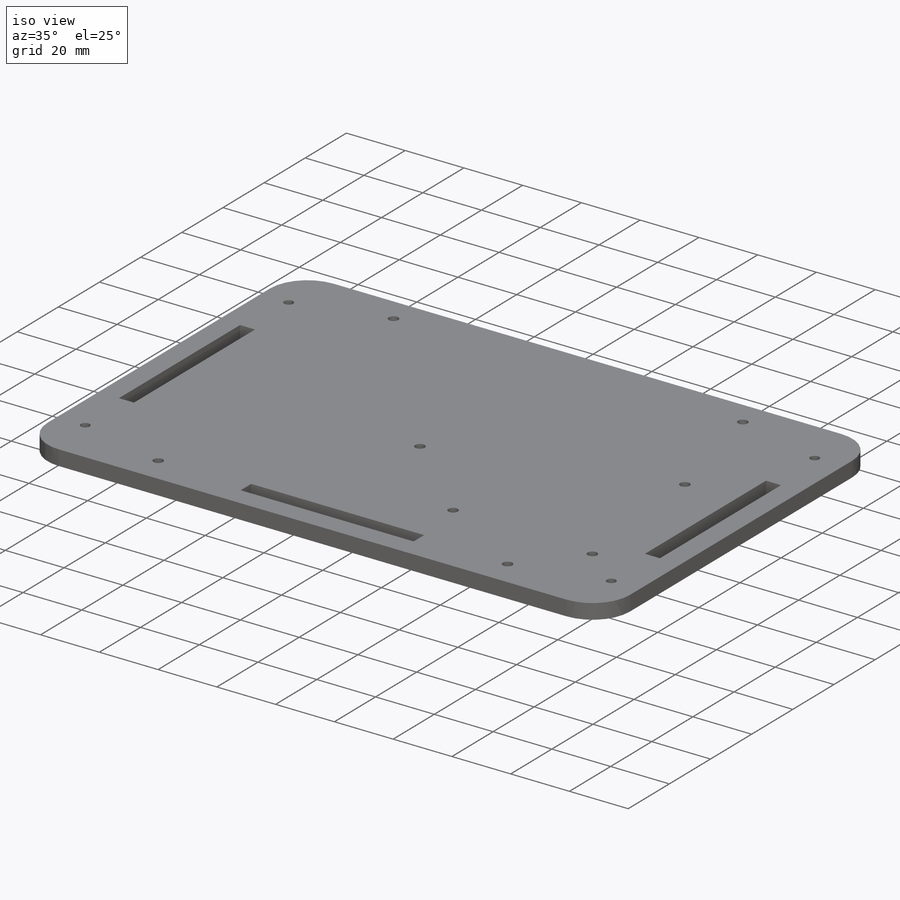
[diagram: iso view]
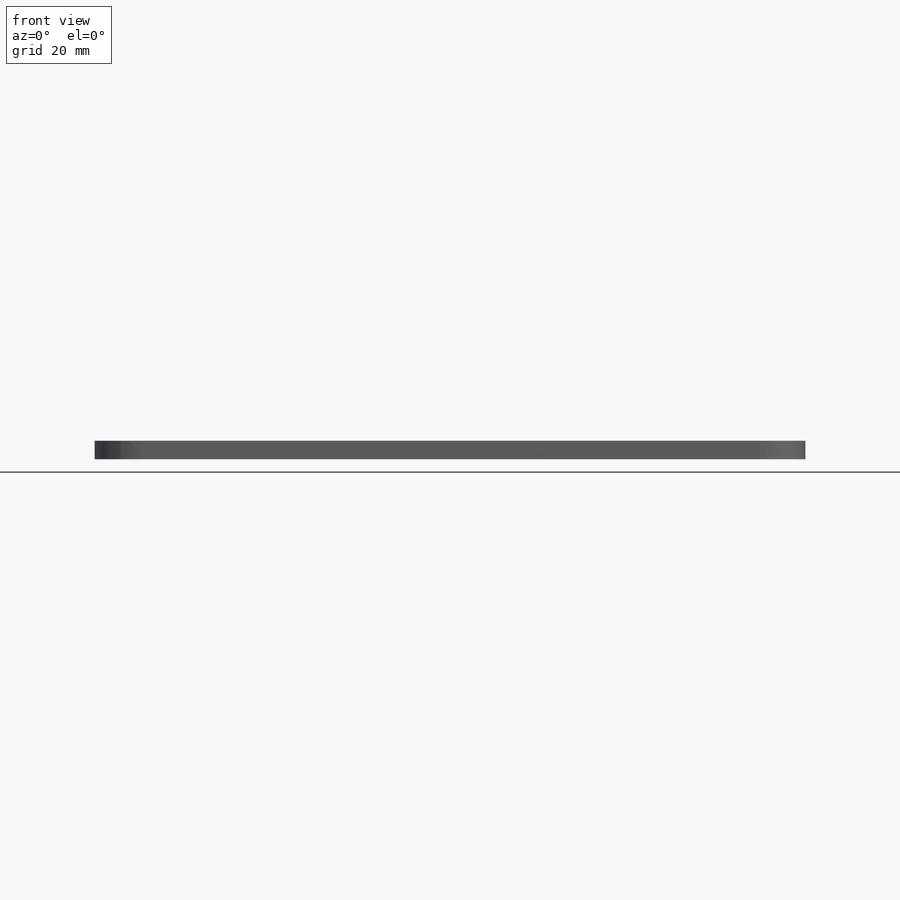
[diagram: front view]
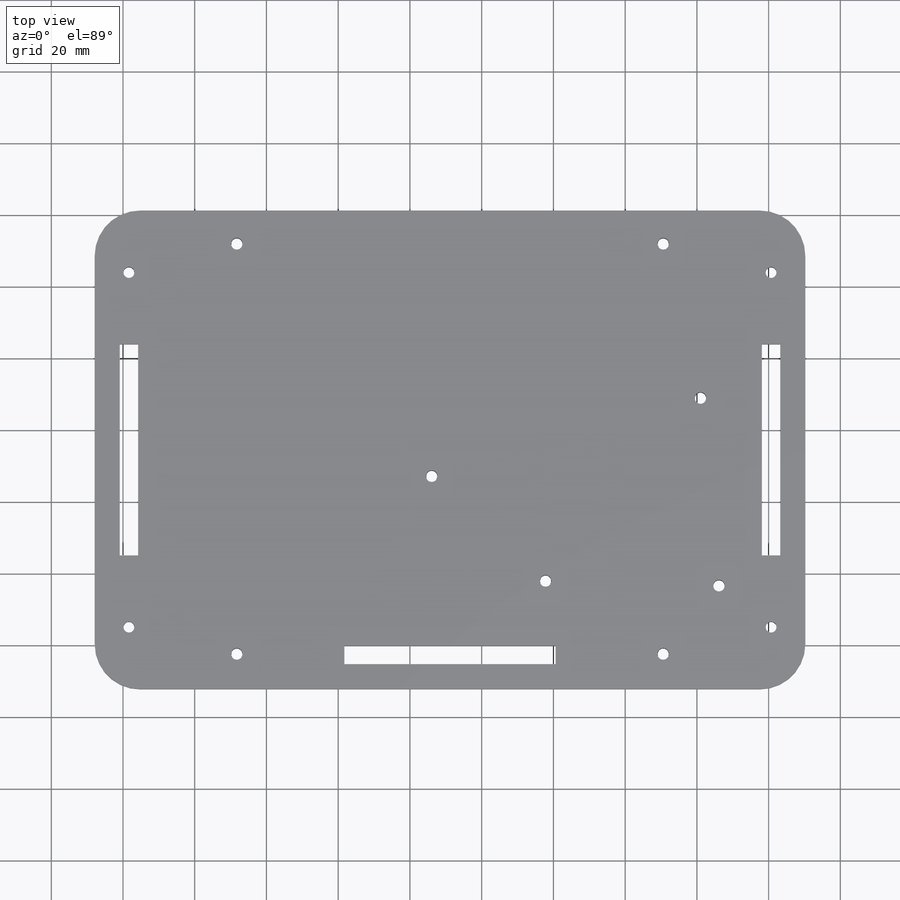
[diagram: top view]
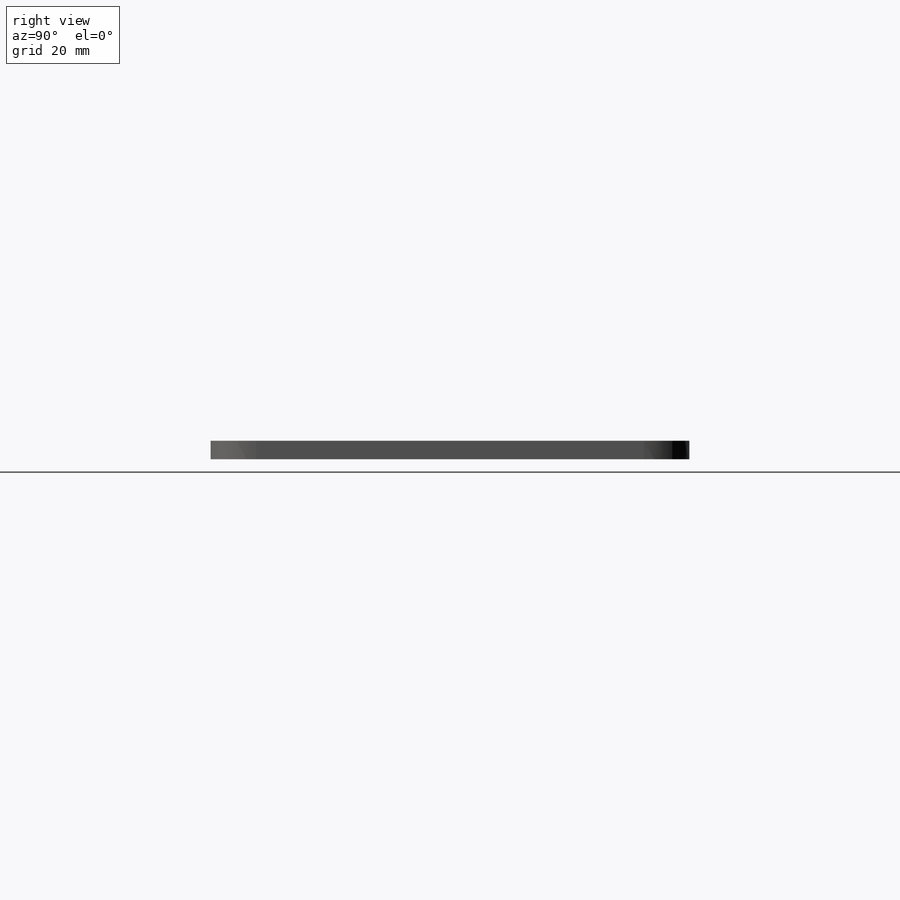
[diagram: right view]
SOLIDWORKS PART (.sldprt)
format: sldprt  version: not decoded by parser v0  size: 328,192 bytes
history: native  units: mm
features: sketch x8, cut_extrude x2, hole x2, material x1, extrude x1, pattern_linear x1 (+11 scaffold rows collapsed)
feature tree (26):
  scaffold x11  (default folders/planes/origin — collapsed)
  material  "Material <not specified>"
  sketch  "Sketch1"  dims[D3=12.7mm D1=133.48mm D2=198.15mm]
  extrude  "Main"  Depth=5.13mm
  sketch  "Sketch2"  dims[c1.D13=3.0mm c1.D14=3.0mm c1.D15=3.0mm c1.D16=3.0mm c1.D4=3.175mm c1.D6=3.175mm c1.D1=58.88mm c1.D2=58.88mm c1.D3=5.13mm c2.D4=5.13mm c2.D5=37.3mm c2.D6=70.115mm c2.D7=70.115mm c2.D8=7.0mm c2.D9=7.0mm c2.D10=58.88mm c2.D2=5.13mm c2.D3=7.0mm c3.D7=58.88mm c3.D9=30.0mm c3.D10=20.0mm c3.D11=20.0mm c3.D12=30.0mm c3.D17=9.56mm c3.D18=9.56mm c3.D19=9.56mm c3.D20=9.56mm c3.D4=~70.153881mm c3.D6=27.94mm]
  cut_extrude  "Cut-Extrude1"  Depth=5.13mm
  sketch  "Sketch3"  dims[c1.D1=99.075mm c1.D2=7.0mm c2.D1=58.88mm c2.D3=69.635mm c2.D4=5.13mm c2.D2=7.0mm]
  cut_extrude  "tooth slot"  [1 undecoded]
  sketch  "Rubber feet sketch"
  hole  "M3 Clearance Hole1"  Diameter=3.2mm Depth=5.1mm
  sketch  "Sketch5"  dims[D1=39.635mm]
  sketch  "Sketch4"  dims[hole-wizard template sketch: 47 standard entries collapsed; hole parameters kept: c15.Hole Depth=5.1mm c15.D3=~14.816244mm c15.Drill Angle=118.0deg]
  pattern_linear  "LPattern1"  Count1=2 Count2=2 Spacing1=118.88mm Spacing2=114.36mm
  hole  "M3 Clearance Hole4"  Diameter=3.2mm Depth=5.1mm
  sketch  "Sketch11"  dims[c1.D1=27.94mm c1.D2=~5.147733mm c1.D3=52.324mm c1.D4=15.24mm c1.D5=51.0mm c1.D6=1.324mm c1.D7=~66.82449mm c1.D8=52.324mm c2.D1=29.21mm c2.D2=31.75mm]
  sketch  "Sketch10"  dims[hole-wizard template sketch: 47 standard entries collapsed; hole parameters kept: c15.Hole Depth=5.1mm c15.D3=~14.816244mm c15.Drill Angle=118.0deg]
decode coverage: 12 of 14 modeling features carry decoded parameters
note: ~ marks probable driven/reference dimensions
note: 1 parameter value undecoded
note: suppression state not decoded; provenance and decode notes live in map.json
